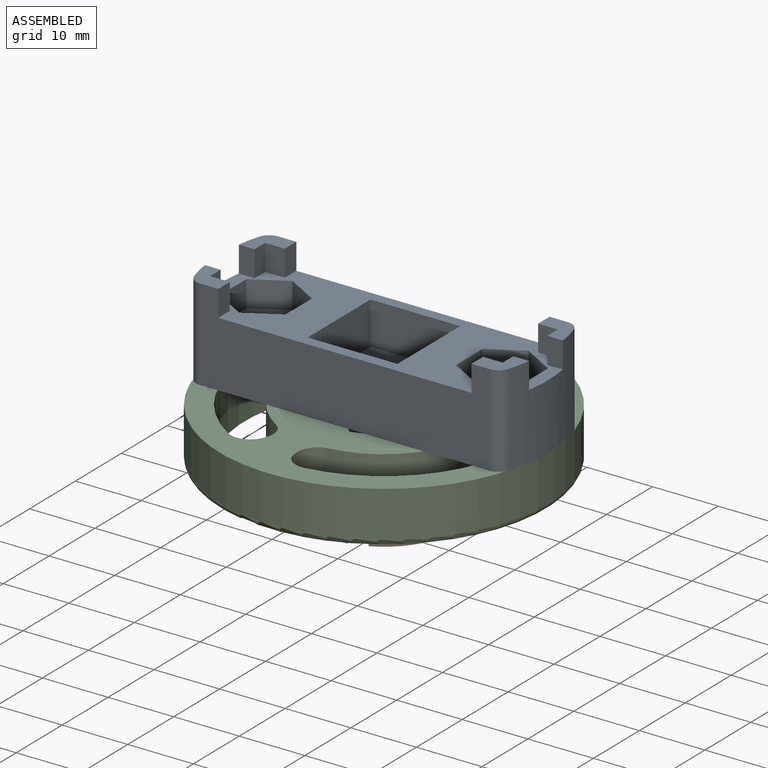
[diagram: assembled view]
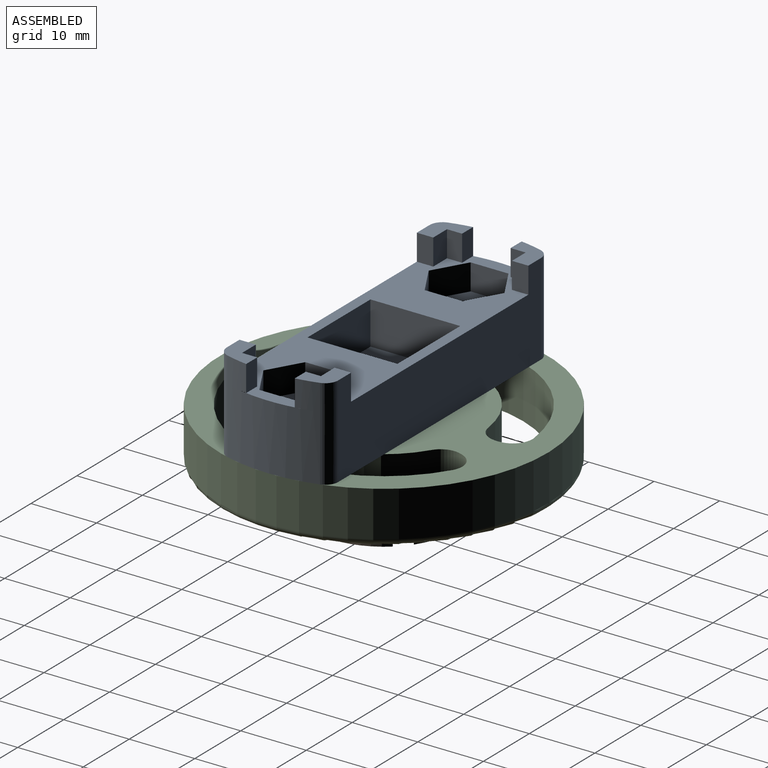
[diagram: assembled view, second angle]
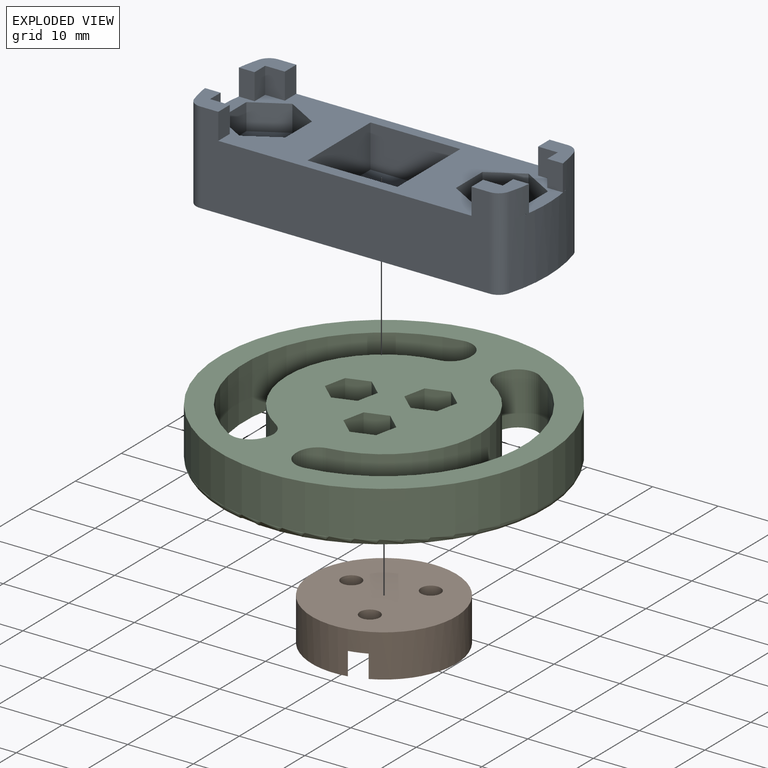
[diagram: exploded view]
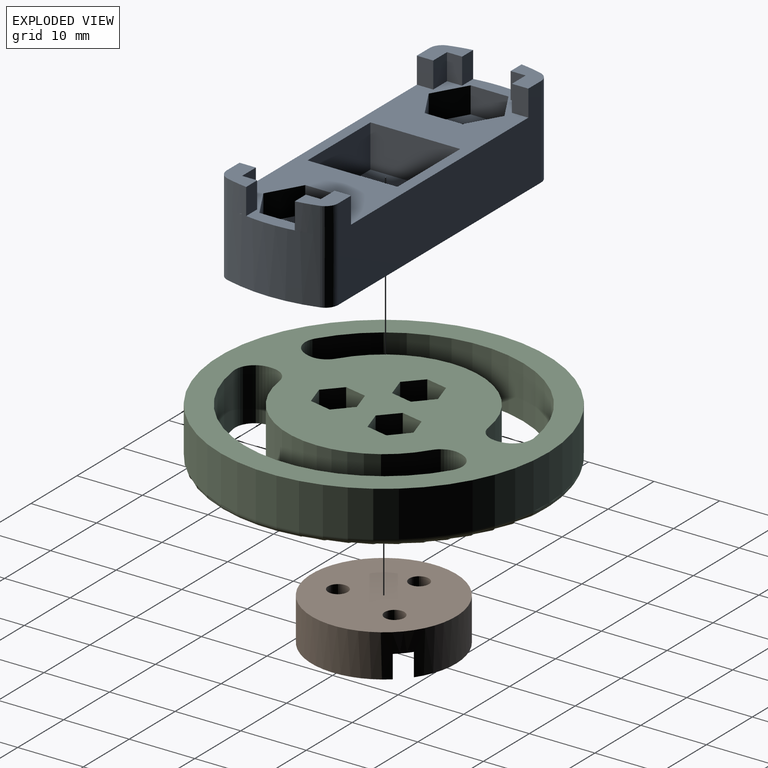
[diagram: exploded view, second angle]
ASSEMBLY  parts=3 mates=2
PART A: 59 faces, bbox 17x50x14 mm
  f0: plane 50x17mm, normal (0,0,1), area 406.2mm2, adj f4,f5,f6,f7,f8,f9,f10,f11
  f1: cylinder r=3mm len=6mm, axis (0,0,1), area 113.1mm2, adj f3,f26
  f2: cylinder r=3mm len=6mm, axis (0,0,1), area 113.1mm2, adj f3,f19
  f3: plane 50x17mm, normal (0,0,-1), area 775.2mm2, adj f1,f2,f7,f8,f9,f10,f51,f53
  f4: plane 13.7x6.5mm, normal (-1,0,0), area 89mm2, adj f0,f5,f11,f12
  f5: plane 13.7x6.5mm, normal (0,1,0), area 89mm2, adj f0,f4,f6,f12
  f6: plane 13.7x6.5mm, normal (1,0,0), area 89mm2, adj f0,f5,f11,f12
  f7: plane 44.13x14mm, normal (-1,0,0), area 463.3mm2, adj f0,f3,f28,f32,f40,f44,f55,f56
  f8: cylinder r=24.99mm len=14.13mm, axis (0,0,-1), area 143.3mm2, adj f0,f3,f29,f33,f51,f57
  f9: plane 44.13x14mm, normal (1,0,0), area 463.3mm2, adj f0,f3,f34,f38,f49,f50,f51,f52
  f10: cylinder r=24.99mm len=14.13mm, axis (0,0,-1), area 143.3mm2, adj f0,f3,f39,f45,f53,f55
  f11: plane 13.7x6.5mm, normal (0,-1,0), area 89mm2, adj f0,f4,f6,f12
  f12: plane 13.7x13.7mm, normal (0,0,1), area 187.7mm2, adj f4,f5,f6,f11
  f13: plane 5.77x4mm, normal (0,1,0), area 23.1mm2, adj f0,f14,f18,f19
  f14: plane 5x4mm, normal (-0.87,0.5,0), area 23.1mm2, adj f0,f13,f15,f19
  f15: plane 5x4mm, normal (-0.87,-0.5,0), area 23.1mm2, adj f0,f14,f16,f19
  f16: plane 5.77x4mm, normal (0,-1,0), area 23.1mm2, adj f0,f15,f17,f19
  f17: plane 5x4mm, normal (0.87,-0.5,0), area 23.1mm2, adj f0,f16,f18,f19
  f18: plane 5x4mm, normal (0.87,0.5,0), area 23.1mm2, adj f0,f13,f17,f19
  f19: plane 11.55x10mm, normal (0,0,1), area 58.3mm2, adj f2,f13,f14,f15,f16,f17,f18
  f20: plane 5x4mm, normal (-0.87,0.5,0), area 23.1mm2, adj f0,f21,f25,f26
  f21: plane 5x4mm, normal (-0.87,-0.5,0), area 23.1mm2, adj f0,f20,f22,f26
  f22: plane 5.77x4mm, normal (0,-1,0), area 23.1mm2, adj f0,f21,f23,f26
  f23: plane 5x4mm, normal (0.87,-0.5,0), area 23.1mm2, adj f0,f22,f24,f26
  f24: plane 5x4mm, normal (0.87,0.5,0), area 23.1mm2, adj f0,f23,f25,f26
  f25: plane 5.77x4mm, normal (0,1,0), area 23.1mm2, adj f0,f20,f24,f26
  f26: plane 11.55x10mm, normal (0,0,1), area 58.3mm2, adj f1,f20,f21,f22,f23,f24,f25
  f27: plane 4x3mm, normal (1,0,0), area 12mm2, adj f0,f28,f31,f32
  f28: plane 4x2.5mm, normal (0,1,0), area 10mm2, adj f0,f7,f27,f32
  f29: cylinder r=23.19mm len=4mm, axis (0,0,-1), area 13.8mm2, adj f0,f8,f30,f32,f58
  f30: plane 4x2.4mm, normal (1,0,0), area 9.6mm2, adj f0,f29,f31,f32
  f31: plane 4x2.3mm, normal (0,1,0), area 9.2mm2, adj f0,f27,f30,f32
  f32: plane 5.4x4.8mm, normal (0,0,1), area 16.2mm2, adj f7,f27,f28,f29,f30,f31,f58
  f33: cylinder r=23.19mm len=4mm, axis (0,0,-1), area 13.8mm2, adj f0,f8,f37,f38,f52
  f34: plane 4x2.5mm, normal (0,1,0), area 10mm2, adj f0,f9,f35,f38
  f35: plane 4x3mm, normal (-1,0,0), area 12mm2, adj f0,f34,f36,f38
  f36: plane 4x2.3mm, normal (0,1,0), area 9.2mm2, adj f0,f35,f37,f38
  f37: plane 4x2.4mm, normal (-1,0,0), area 9.6mm2, adj f0,f33,f36,f38
  f38: plane 5.4x4.8mm, normal (0,0,1), area 16.2mm2, adj f9,f33,f34,f35,f36,f37,f52
  f39: cylinder r=23.19mm len=4mm, axis (0,0,-1), area 13.8mm2, adj f0,f10,f43,f44,f56
  f40: plane 4x2.5mm, normal (0,-1,0), area 10mm2, adj f0,f7,f41,f44
  f41: plane 4x3mm, normal (1,0,0), area 12mm2, adj f0,f40,f42,f44
  f42: plane 4x2.3mm, normal (0,-1,0), area 9.2mm2, adj f0,f41,f43,f44
  f43: plane 4x2.4mm, normal (1,0,0), area 9.6mm2, adj f0,f39,f42,f44
  f44: plane 5.4x4.8mm, normal (0,0,1), area 16.2mm2, adj f7,f39,f40,f41,f42,f43,f56
  f45: cylinder r=23.19mm len=4mm, axis (0,0,-1), area 13.8mm2, adj f0,f10,f46,f50,f54
  f46: plane 4x2.4mm, normal (-1,0,0), area 9.6mm2, adj f0,f45,f47,f50
  f47: plane 4x2.3mm, normal (0,-1,0), area 9.2mm2, adj f0,f46,f48,f50
  f48: plane 4x3mm, normal (-1,0,0), area 12mm2, adj f0,f47,f49,f50
  f49: plane 4x2.5mm, normal (0,-1,0), area 10mm2, adj f0,f9,f48,f50
  f50: plane 5.4x4.8mm, normal (0,0,1), area 16.2mm2, adj f9,f45,f46,f47,f48,f49,f54
  f51: cylinder r=2mm len=10mm, axis (0,0,-1), area 25.7mm2, adj f3,f8,f9,f52
  f52: cylinder r=2mm len=4mm, axis (0,0,-1), area 10.3mm2, adj f9,f33,f38,f51
  f53: cylinder r=2mm len=10mm, axis (0,0,-1), area 25.7mm2, adj f3,f9,f10,f54
  f54: cylinder r=2mm len=4mm, axis (0,0,-1), area 10.3mm2, adj f9,f45,f50,f53
  f55: cylinder r=2mm len=10mm, axis (0,0,-1), area 25.7mm2, adj f3,f7,f10,f56
  f56: cylinder r=2mm len=4mm, axis (0,0,-1), area 10.3mm2, adj f7,f39,f44,f55
  f57: cylinder r=2mm len=10mm, axis (0,0,-1), area 25.7mm2, adj f3,f7,f8,f58
  f58: cylinder r=2mm len=4mm, axis (0,0,-1), area 10.3mm2, adj f7,f29,f32,f57
PART B: 12 faces, bbox 22x22x6.5 mm
  f0: cylinder r=1.5mm len=3mm, axis (0,0,-1), area 28.3mm2, adj f5,f8
  f1: cylinder r=1.5mm len=3mm, axis (0,0,-1), area 28.3mm2, adj f5,f10
  f2: cylinder r=1.5mm len=3mm, axis (0,0,-1), area 28.3mm2, adj f5,f6
  f3: cylinder r=11mm len=22mm, axis (0,0,-1), area 420.7mm2, adj f4,f5,f6,f7,f8,f9,f10,f11
  f4: plane 22x21.92mm, normal (0,0,1), area 135.5mm2, adj f3,f7,f9,f11
  f5: plane 22x22mm, normal (0,0,-1), area 358.9mm2, adj f0,f1,f2,f3
  f6: plane 10.2x10.2mm, normal (0,0,1), area 74.5mm2, adj f2,f3,f7
  f7: cylinder r=5.1mm len=10.2mm, axis (0,0,1), area 102.5mm2, adj f3,f4,f6
  f8: plane 10.2x10.2mm, normal (0,0,1), area 74.5mm2, adj f0,f3,f9
  f9: cylinder r=5.1mm len=10.2mm, axis (0,0,1), area 102.5mm2, adj f3,f4,f8
  f10: plane 10.2x10.1mm, normal (0,0,1), area 74.5mm2, adj f1,f3,f11
  f11: cylinder r=5.1mm len=10.2mm, axis (0,0,1), area 102.5mm2, adj f3,f4,f10
PART C: 44 faces, bbox 54.1x54.1x8 mm
  f0: cylinder r=1.7mm len=5mm, axis (0,0,-1), area 53.4mm2, adj f13,f35
  f1: cylinder r=1.7mm len=5mm, axis (0,0,-1), area 53.4mm2, adj f13,f28
  f2: cylinder r=1.7mm len=5mm, axis (0,0,-1), area 53.4mm2, adj f13,f42
  f3: plane 50x50mm, normal (0,0,1), area 1229.3mm2, adj f4,f5,f6,f7,f8,f9,f10,f11
  f4: cylinder r=14.75mm len=27.83mm, axis (0,0,-1), area 291mm2, adj f3,f13,f14,f20
  f5: cylinder r=4.52mm len=8mm, axis (0,0,-1), area 12.1mm2, adj f3,f13,f14,f15
  f6: cylinder r=21.25mm len=40.15mm, axis (0,0,-1), area 420.6mm2, adj f3,f13,f15,f19
  f7: cylinder r=4.52mm len=8mm, axis (0,0,-1), area 12.1mm2, adj f3,f13,f16,f17
  f8: cylinder r=14.75mm len=27.83mm, axis (0,0,-1), area 291mm2, adj f3,f13,f17,f21
  f9: cylinder r=4.52mm len=8mm, axis (0,0,-1), area 12.1mm2, adj f3,f13,f18,f21
  f10: cylinder r=25mm len=50mm, axis (0,0,-1), area 1099.6mm2, adj f3,f43
  f11: cylinder r=4.52mm len=8mm, axis (0,0,-1), area 12.1mm2, adj f3,f13,f19,f20
  f12: cylinder r=21.25mm len=40.15mm, axis (0,0,-1), area 420.6mm2, adj f3,f13,f16,f18
  f13: plane 48x48mm, normal (0,0,-1), area 1141.6mm2, adj f0,f1,f2,f4,f5,f6,f7,f8
  f14: cylinder r=3mm len=8mm, axis (0,0,-1), area 30.2mm2, adj f3,f4,f5,f13
  f15: cylinder r=3mm len=8mm, axis (0,0,1), area 37mm2, adj f3,f5,f6,f13
  f16: cylinder r=3mm len=8mm, axis (0,0,1), area 37mm2, adj f3,f7,f12,f13
  f17: cylinder r=3mm len=8mm, axis (0,0,-1), area 30.2mm2, adj f3,f7,f8,f13
  f18: cylinder r=3mm len=8mm, axis (0,0,1), area 37mm2, adj f3,f9,f12,f13
  f19: cylinder r=3mm len=8mm, axis (0,0,1), area 37mm2, adj f3,f6,f11,f13
  f20: cylinder r=3mm len=8mm, axis (0,0,-1), area 30.2mm2, adj f3,f4,f11,f13
  f21: cylinder r=3mm len=8mm, axis (0,0,-1), area 30.2mm2, adj f3,f8,f9,f13
  f22: plane 3x3mm, normal (-0.5,0.87,0), area 10.4mm2, adj f3,f23,f27,f28
  f23: plane 3.46x3mm, normal (-1,0,0), area 10.4mm2, adj f3,f22,f24,f28
  f24: plane 3x3mm, normal (-0.5,-0.87,0), area 10.4mm2, adj f3,f23,f25,f28
  f25: plane 3x3mm, normal (0.5,-0.87,0), area 10.4mm2, adj f3,f24,f26,f28
  f26: plane 3.46x3mm, normal (1,0,0), area 10.4mm2, adj f3,f25,f27,f28
  f27: plane 3x3mm, normal (0.5,0.87,0), area 10.4mm2, adj f3,f22,f26,f28
  f28: plane 6.93x6mm, normal (0,0,1), area 22.1mm2, adj f1,f22,f23,f24,f25,f26,f27
  f29: plane 3.46x3mm, normal (1,0,0), area 10.4mm2, adj f3,f30,f34,f35
  f30: plane 3x3mm, normal (0.5,0.87,0), area 10.4mm2, adj f3,f29,f31,f35
  f31: plane 3x3mm, normal (-0.5,0.87,0), area 10.4mm2, adj f3,f30,f32,f35
  f32: plane 3.46x3mm, normal (-1,0,0), area 10.4mm2, adj f3,f31,f33,f35
  f33: plane 3x3mm, normal (-0.5,-0.87,0), area 10.4mm2, adj f3,f32,f34,f35
  f34: plane 3x3mm, normal (0.5,-0.87,0), area 10.4mm2, adj f3,f29,f33,f35
  f35: plane 6.93x6mm, normal (0,0,1), area 22.1mm2, adj f0,f29,f30,f31,f32,f33,f34
  f36: plane 3x3mm, normal (0.5,-0.87,0), area 10.4mm2, adj f3,f37,f41,f42
  f37: plane 3.46x3mm, normal (1,0,0), area 10.4mm2, adj f3,f36,f38,f42
  f38: plane 3x3mm, normal (0.5,0.87,0), area 10.4mm2, adj f3,f37,f39,f42
  f39: plane 3x3mm, normal (-0.5,0.87,0), area 10.4mm2, adj f3,f38,f40,f42
  f40: plane 3.46x3mm, normal (-1,0,0), area 10.4mm2, adj f3,f39,f41,f42
  f41: plane 3x3mm, normal (-0.5,-0.87,0), area 10.4mm2, adj f3,f36,f40,f42
  f42: plane 6.93x6mm, normal (0,0,1), area 22.1mm2, adj f2,f36,f37,f38,f39,f40,f41
  f43: torus R=24mm, axis (0,0,1), area 243.2mm2, adj f10,f13
PLACE A rot(axis=(0,0,-1),90deg) t=(0.32,1.06,3.3)mm
PLACE B rot(axis=(0.78,0.63,0),180deg) t=(0.33,1.06,-4.7)mm
PLACE C rot(axis=(0,0,-1),12.1deg) t=(0.33,1.06,-4.7)mm
MATE revolute A.f10 <-> C.f10  axis (0,0,-1) through (0.33,1.06,3.3)mm
MATE fastened B.f3 <-> C.f6  axis (0,0,1) through (0.33,1.06,-4.7)mm
